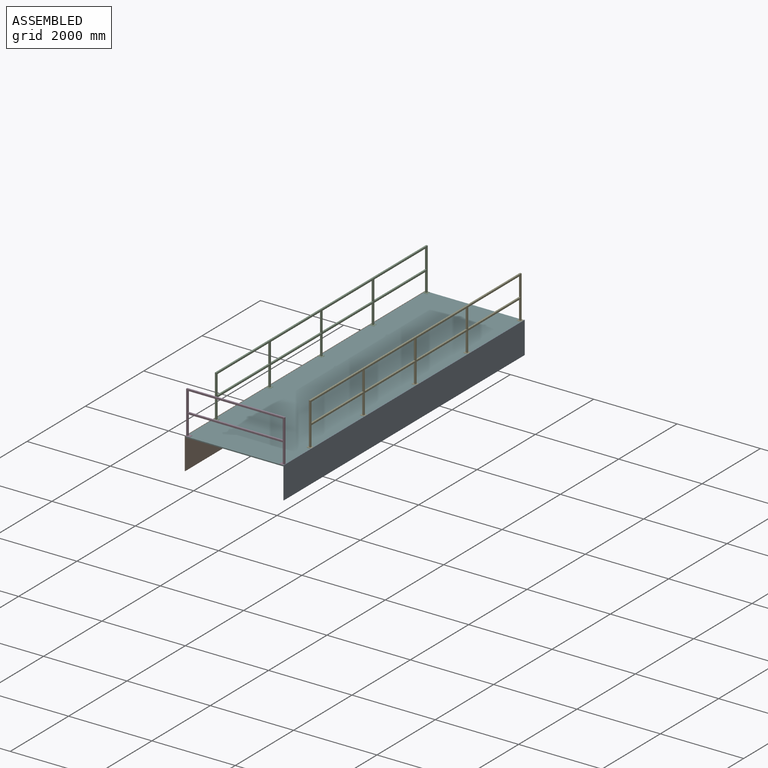
[diagram: assembled view]
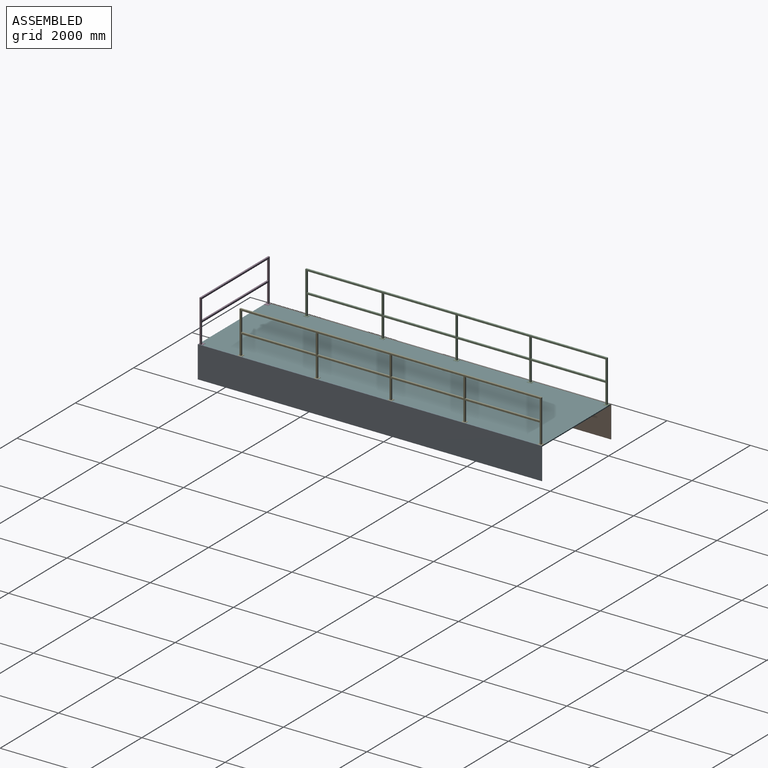
[diagram: assembled view, second angle]
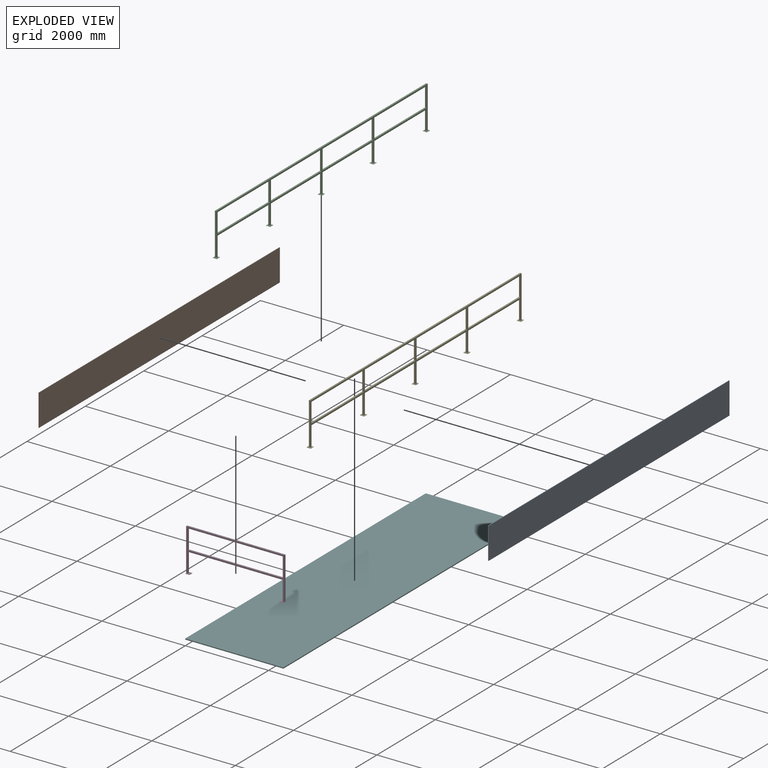
[diagram: exploded view]
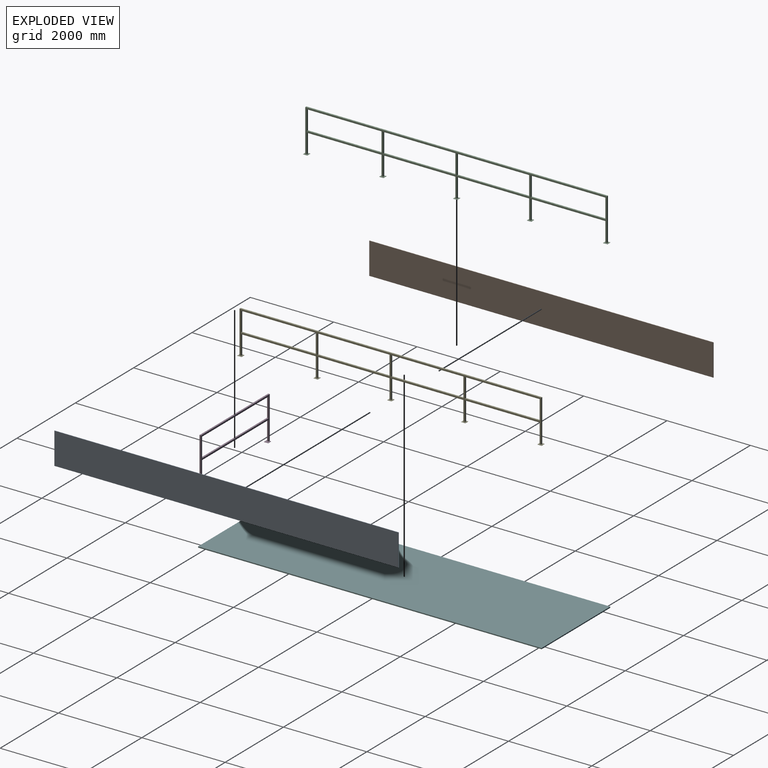
[diagram: exploded view, second angle]
ASSEMBLY  parts=6 mates=5
PART A: 6 faces, bbox 8255x762x12.7 mm
  f0: plane 762x12.7mm, normal (-1,0,0), area 9677.4mm2, adj f1,f3,f4,f5
  f1: plane 8255x12.7mm, normal (0,-1,0), area 104838.5mm2, adj f0,f2,f4,f5
  f2: plane 762x12.7mm, normal (1,0,0), area 9677.4mm2, adj f1,f3,f4,f5
  f3: plane 8255x12.7mm, normal (0,1,0), area 104838.5mm2, adj f0,f2,f4,f5
  f4: plane 8255x762mm, normal (0,0,1), area 6290310mm2, adj f0,f1,f2,f3
  f5: plane 8255x762mm, normal (0,0,-1), area 6290310mm2, adj f0,f1,f2,f3
PART B: same geometry as A
PART C: 63 faces, bbox 7302.5x101.6x1020.8 mm
  f0: plane 1733.55x38.1mm, normal (0,0,-1), area 66048.3mm2, adj f1,f30,f31,f32
  f1: plane 469.9x38.1mm, normal (-1,0,0), area 17903.2mm2, adj f0,f2,f31,f32
  f2: plane 1733.55x38.1mm, normal (0,0,1), area 66048.3mm2, adj f1,f30,f31,f32
  f3: plane 469.9x38.1mm, normal (1,0,0), area 17903.2mm2, adj f4,f27,f31,f32
  f4: plane 1733.55x38.1mm, normal (0,0,-1), area 66048.3mm2, adj f3,f5,f31,f32
  f5: plane 469.9x38.1mm, normal (-1,0,0), area 17903.2mm2, adj f4,f27,f31,f32
  f6: plane 469.9x38.1mm, normal (1,0,0), area 17903.2mm2, adj f7,f28,f31,f32
  f7: plane 1790.7x38.1mm, normal (0,0,-1), area 68225.7mm2, adj f6,f8,f31,f32
  f8: plane 469.9x38.1mm, normal (-1,0,0), area 17903.2mm2, adj f7,f28,f31,f32
  f9: plane 469.9x38.1mm, normal (1,0,0), area 17903.2mm2, adj f10,f29,f31,f32
  f10: plane 1790.7x38.1mm, normal (0,0,-1), area 68225.7mm2, adj f9,f11,f31,f32
  f11: plane 469.9x38.1mm, normal (-1,0,0), area 17903.2mm2, adj f10,f29,f31,f32
  f12: plane 469.9x38.1mm, normal (1,0,0), area 17903.2mm2, adj f13,f31,f32,f39
  f13: plane 1733.55x38.1mm, normal (0,0,-1), area 66048.3mm2, adj f12,f14,f31,f32
  f14: plane 469.9x38.1mm, normal (-1,0,0), area 17903.2mm2, adj f13,f31,f32,f45
  f15: plane 469.9x38.1mm, normal (1,0,0), area 17903.2mm2, adj f16,f31,f32,f45
  f16: plane 1733.55x38.1mm, normal (0,0,-1), area 66048.3mm2, adj f15,f17,f31,f32
  f17: plane 469.9x38.1mm, normal (-1,0,0), area 17903.2mm2, adj f16,f31,f32,f51
  f18: plane 469.9x38.1mm, normal (1,0,0), area 17903.2mm2, adj f19,f31,f32,f51
  f19: plane 1790.7x38.1mm, normal (0,0,-1), area 68225.7mm2, adj f18,f20,f31,f32
  f20: plane 469.9x38.1mm, normal (-1,0,0), area 17903.2mm2, adj f19,f31,f32,f57
  f21: plane 1016x38.1mm, normal (1,0,0), area 38709.6mm2, adj f22,f31,f32,f57
  f22: plane 7239x38.1mm, normal (0,0,1), area 275805.9mm2, adj f21,f23,f31,f32
  f23: plane 1016x38.1mm, normal (-1,0,0), area 38709.6mm2, adj f22,f31,f32,f38
  f24: plane 469.9x38.1mm, normal (1,0,0), area 17903.2mm2, adj f25,f31,f32,f38
  f25: plane 1790.7x38.1mm, normal (0,0,-1), area 68225.7mm2, adj f24,f26,f31,f32
  f26: plane 469.9x38.1mm, normal (-1,0,0), area 17903.2mm2, adj f25,f31,f32,f39
  f27: plane 1733.55x38.1mm, normal (0,0,1), area 66048.3mm2, adj f3,f5,f31,f32
  f28: plane 1790.7x38.1mm, normal (0,0,1), area 68225.7mm2, adj f6,f8,f31,f32
  f29: plane 1790.7x38.1mm, normal (0,0,1), area 68225.7mm2, adj f9,f11,f31,f32
  f30: plane 469.9x38.1mm, normal (1,0,0), area 17903.2mm2, adj f0,f2,f31,f32
  f31: plane 7239x1016mm, normal (0,-1,0), area 730643.7mm2, adj f0,f1,f2,f3,f4,f5,f6,f7
  f32: plane 7239x1016mm, normal (0,1,0), area 730643.7mm2, adj f0,f1,f2,f3,f4,f5,f6,f7
  f33: plane 101.6x4.76mm, normal (0,-1,0), area 483.9mm2, adj f34,f36,f37,f38
  f34: plane 101.6x4.76mm, normal (-1,0,0), area 483.9mm2, adj f33,f35,f37,f38
  f35: plane 101.6x4.76mm, normal (0,1,0), area 483.9mm2, adj f34,f36,f37,f38
  f36: plane 101.6x4.76mm, normal (1,0,0), area 483.9mm2, adj f33,f35,f37,f38
  f37: plane 101.6x101.6mm, normal (0,0,-1), area 10322.6mm2, adj f33,f34,f35,f36
  f38: plane 101.6x101.6mm, normal (0,0,1), area 8871mm2, adj f23,f24,f31,f32,f33,f34,f35,f36
  f39: plane 101.6x101.6mm, normal (0,0,1), area 8870.9mm2, adj f12,f26,f31,f32,f40,f41,f42,f43
  f40: plane 101.6x4.76mm, normal (-1,0,0), area 483.9mm2, adj f39,f41,f43,f44
  f41: plane 101.6x4.76mm, normal (0,1,0), area 483.9mm2, adj f39,f40,f42,f44
  f42: plane 101.6x4.76mm, normal (1,0,0), area 483.9mm2, adj f39,f41,f43,f44
  f43: plane 101.6x4.76mm, normal (0,-1,0), area 483.9mm2, adj f39,f40,f42,f44
  f44: plane 101.6x101.6mm, normal (0,0,-1), area 10322.6mm2, adj f40,f41,f42,f43
  f45: plane 101.6x101.6mm, normal (0,0,1), area 8870.9mm2, adj f14,f15,f31,f32,f46,f47,f48,f49
  f46: plane 101.6x4.76mm, normal (0,-1,0), area 483.9mm2, adj f45,f47,f49,f50
  f47: plane 101.6x4.76mm, normal (-1,0,0), area 483.9mm2, adj f45,f46,f48,f50
  f48: plane 101.6x4.76mm, normal (0,1,0), area 483.9mm2, adj f45,f47,f49,f50
  f49: plane 101.6x4.76mm, normal (1,0,0), area 483.9mm2, adj f45,f46,f48,f50
  f50: plane 101.6x101.6mm, normal (0,0,-1), area 10322.6mm2, adj f46,f47,f48,f49
  f51: plane 101.6x101.6mm, normal (0,0,1), area 8871mm2, adj f17,f18,f31,f32,f52,f53,f54,f55
  f52: plane 101.6x4.76mm, normal (0,-1,0), area 483.9mm2, adj f51,f53,f55,f56
  f53: plane 101.6x4.76mm, normal (-1,0,0), area 483.9mm2, adj f51,f52,f54,f56
  f54: plane 101.6x4.76mm, normal (0,1,0), area 483.9mm2, adj f51,f53,f55,f56
  f55: plane 101.6x4.76mm, normal (1,0,0), area 483.9mm2, adj f51,f52,f54,f56
  f56: plane 101.6x101.6mm, normal (0,0,-1), area 10322.6mm2, adj f52,f53,f54,f55
  f57: plane 101.6x101.6mm, normal (0,0,1), area 8870.9mm2, adj f20,f21,f31,f32,f58,f59,f60,f61
  f58: plane 101.6x4.76mm, normal (0,-1,0), area 483.9mm2, adj f57,f59,f61,f62
  f59: plane 101.6x4.76mm, normal (-1,0,0), area 483.9mm2, adj f57,f58,f60,f62
  f60: plane 101.6x4.76mm, normal (0,1,0), area 483.9mm2, adj f57,f59,f61,f62
  f61: plane 101.6x4.76mm, normal (1,0,0), area 483.9mm2, adj f57,f58,f60,f62
  f62: plane 101.6x101.6mm, normal (0,0,-1), area 10322.6mm2, adj f58,f59,f60,f61
PART D: 22 faces, bbox 2355.9x101.6x1020.8 mm
  f0: plane 2279.65x38.1mm, normal (0,0,-1), area 86854.7mm2, adj f1,f9,f10,f11
  f1: plane 469.9x38.1mm, normal (-1,0,0), area 17903.2mm2, adj f0,f2,f10,f11
  f2: plane 2279.65x38.1mm, normal (0,0,1), area 86854.7mm2, adj f1,f9,f10,f11
  f3: plane 1020.76x101.6mm, normal (1,0,0), area 39193.5mm2, adj f4,f10,f11,f17,f18,f20,f21
  f4: plane 2355.85x38.1mm, normal (0,0,1), area 89757.9mm2, adj f3,f5,f10,f11
  f5: plane 1020.76x101.6mm, normal (-1,0,0), area 39193.5mm2, adj f4,f10,f11,f12,f13,f14,f16
  f6: plane 469.9x38.1mm, normal (1,0,0), area 17903.2mm2, adj f7,f10,f11,f12
  f7: plane 2279.65x38.1mm, normal (0,0,-1), area 86854.7mm2, adj f6,f8,f10,f11
  f8: plane 469.9x38.1mm, normal (-1,0,0), area 17903.2mm2, adj f7,f10,f11,f17
  f9: plane 469.9x38.1mm, normal (1,0,0), area 17903.2mm2, adj f0,f2,f10,f11
  f10: plane 2355.85x1016mm, normal (0,-1,0), area 251128.5mm2, adj f0,f1,f2,f3,f4,f5,f6,f7
  f11: plane 2355.85x1016mm, normal (0,1,0), area 251128.5mm2, adj f0,f1,f2,f3,f4,f5,f6,f7
  f12: plane 101.6x101.6mm, normal (0,0,1), area 8870.9mm2, adj f5,f6,f10,f11,f13,f14,f15
  f13: plane 101.6x4.76mm, normal (0,-1,0), area 483.9mm2, adj f5,f12,f15,f16
  f14: plane 101.6x4.76mm, normal (0,1,0), area 483.9mm2, adj f5,f12,f15,f16
  f15: plane 101.6x4.76mm, normal (1,0,0), area 483.9mm2, adj f12,f13,f14,f16
  f16: plane 101.6x101.6mm, normal (0,0,-1), area 10322.6mm2, adj f5,f13,f14,f15
  f17: plane 101.6x101.6mm, normal (0,0,1), area 8871mm2, adj f3,f8,f10,f11,f18,f19,f20
  f18: plane 101.6x4.76mm, normal (0,-1,0), area 483.9mm2, adj f3,f17,f19,f21
  f19: plane 101.6x4.76mm, normal (-1,0,0), area 483.9mm2, adj f17,f18,f20,f21
  f20: plane 101.6x4.76mm, normal (0,1,0), area 483.9mm2, adj f3,f17,f19,f21
  f21: plane 101.6x101.6mm, normal (0,0,-1), area 10322.6mm2, adj f3,f18,f19,f20
PART E: same geometry as C
PART F: 6 faces, bbox 2355.9x8242.3x25.4 mm
  f0: plane 8242.3x25.4mm, normal (-1,0,0), area 209354.4mm2, adj f1,f3,f4,f5
  f1: plane 2355.85x25.4mm, normal (0,-1,0), area 59838.6mm2, adj f0,f2,f4,f5
  f2: plane 8242.3x25.4mm, normal (1,0,0), area 209354.4mm2, adj f1,f3,f4,f5
  f3: plane 2355.85x25.4mm, normal (0,1,0), area 59838.6mm2, adj f0,f2,f4,f5
  f4: plane 8242.3x2355.85mm, normal (0,0,1), area 19417622.5mm2, adj f0,f1,f2,f3
  f5: plane 8242.3x2355.85mm, normal (0,0,-1), area 19417622.5mm2, adj f0,f1,f2,f3
PLACE A rot(axis=(0.58,0.58,0.58),120deg) t=(2355.85,0,-731.84)mm
PLACE B rot(axis=(0.58,0.58,0.58),120deg) t=(-12.7,0,-731.84)mm
PLACE C rot(axis=(0,0,-1),90deg) t=(69.85,8210.55,30.16)mm
PLACE D t=(0,69.85,30.16)mm
PLACE E rot(axis=(0,0,1),90deg) t=(2286,971.55,30.16)mm
PLACE F at identity
MATE fastened A.f5 <-> D.f3  axis (-1,0,0) through (2355.85,0,30.16)mm
MATE fastened C.f37 <-> F.f4  axis (0,0,-1) through (0,8242.3,25.4)mm
MATE fastened D.f16 <-> F.f4  axis (0,0,-1) through (0,0,25.4)mm
MATE fastened B.f4 <-> D.f5  axis (1,0,0) through (0,0,30.16)mm
MATE fastened E.f62 <-> F.f4  axis (0,0,-1) through (2355.85,8242.3,25.4)mm
